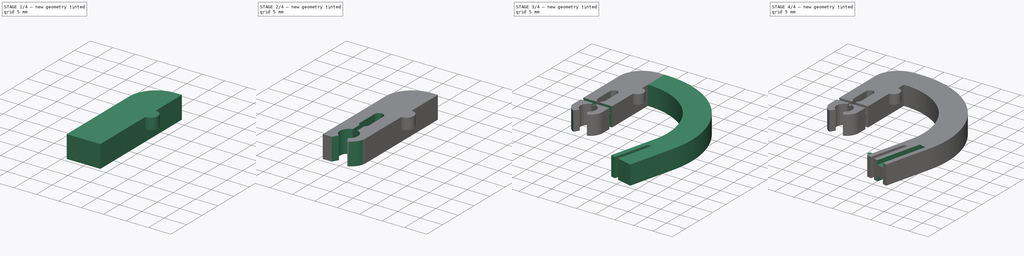
[diagram: build sequence overview — one tinted view per stage of 4, left to right]
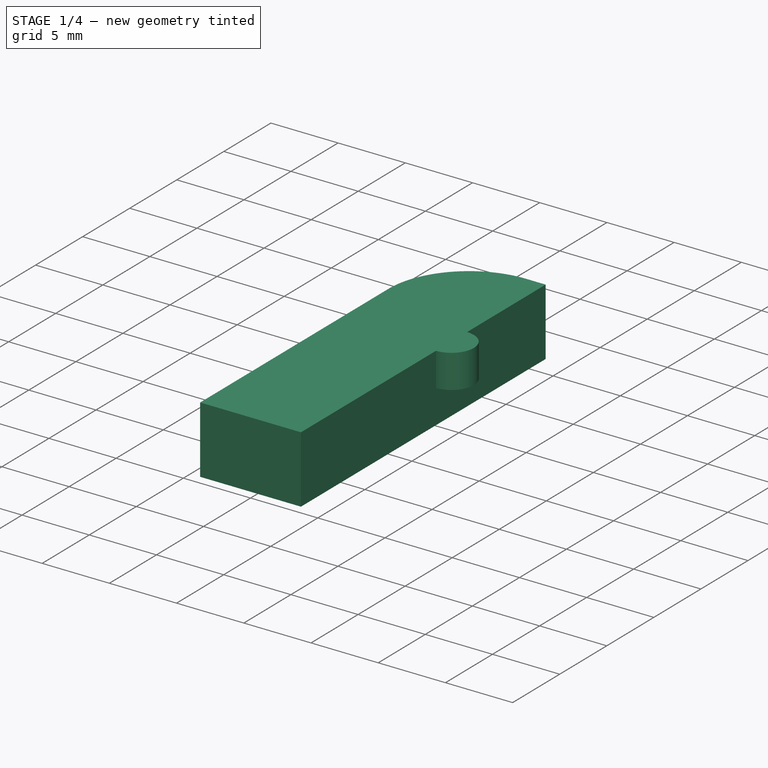
[diagram: stage 1 of 4 — iso view after this stage's code; geometry added in this stage tinted green]
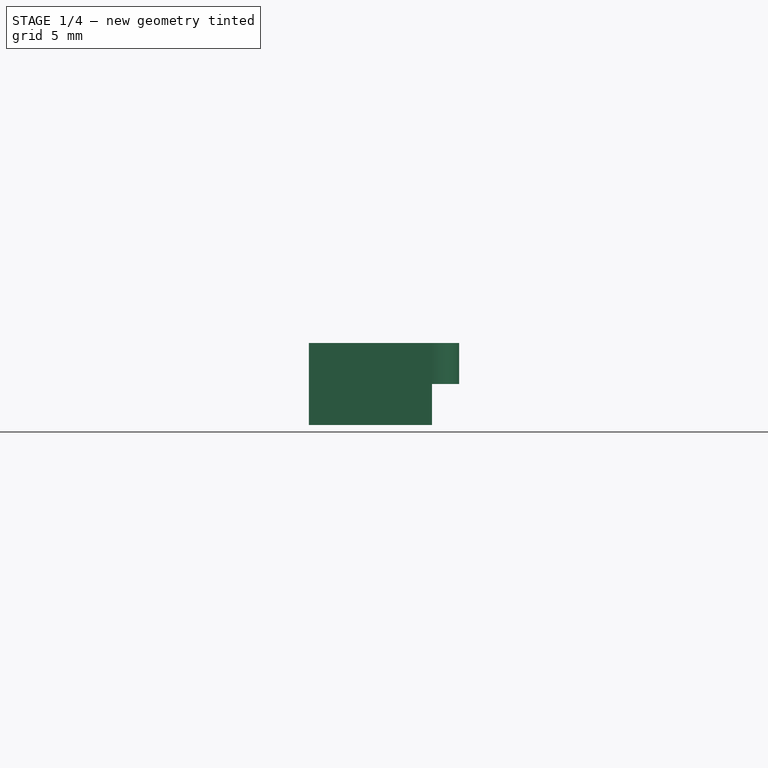
[diagram: stage 1 of 4 — front view after this stage's code; geometry added in this stage tinted green]
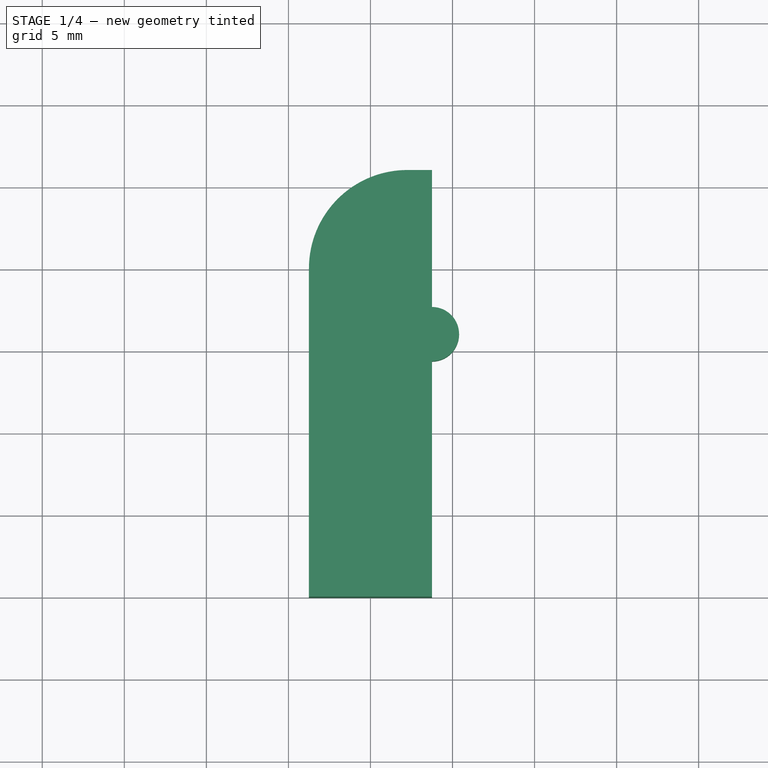
[diagram: stage 1 of 4 — top view after this stage's code; geometry added in this stage tinted green]
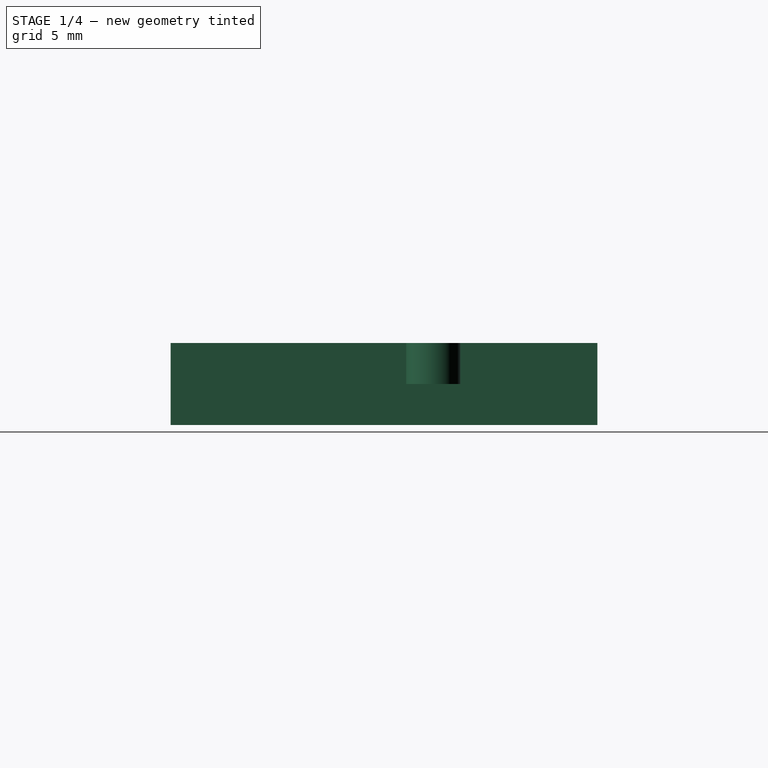
[diagram: stage 1 of 4 — right view after this stage's code; geometry added in this stage tinted green]
FCSTD DOCUMENT  (FreeCAD 0.21R33771 (Git))
Label: Bügel
License: All rights reserved
LicenseURL: http://en.wikipedia.org/wiki/All_rights_reserved
objects: Sketcher::SketchObject×10, PartDesign::Pocket×6, PartDesign::Pad×4, PartDesign::Mirrored×2, Image::ImagePlane×1, PartDesign::Fillet×1, PartDesign::Body×1
note: 35 computed .brp shape members not serialized (recipe doc carries the construction recipe); baked Part::Feature solids carry a one-line shape summary decoded from their .brp

FEATURE [Image::ImagePlane] _0241005112909  label="20241005112909"
  Placement = pos=(-12.9647,-49.7911,0) rot=(0,0,-1;0.122173rad)
  XSize = 210.342
  YSize = 297.307
FEATURE [Sketcher::SketchObject] Sketch003
  FullyConstrained = true
  MapMode = 5
  Support = -> [XY_Plane]
  sketch-geometry (4):
    g0: LineSegment StartX=-3.75 StartY=0 StartZ=0 EndX=3.75 EndY=0 EndZ=0
    g1: LineSegment StartX=3.75 StartY=0 StartZ=0 EndX=3.75 EndY=26 EndZ=0
    g2: LineSegment StartX=3.75 StartY=26 StartZ=0 EndX=-3.75 EndY=26 EndZ=0
    g3: LineSegment StartX=-3.75 StartY=26 StartZ=0 EndX=-3.75 EndY=0 EndZ=0
  constraints (11):
    c: Coincident(g0,g1)
    c: Coincident(g1,g2)
    c: Coincident(g2,g3)
    c: Coincident(g3,g0)
    c: Horizontal(g0)
    c: Horizontal(g2)
    c: Vertical(g1)
    c: Vertical(g3)
    c: DistanceX(g2,g2) = 7.5
    c: DistanceY(g3,g3) = 26
    c: Symmetric(g0,g0,g-1)
FEATURE [PartDesign::Pad] Pad
  Direction = (0,0,1)
  Length = 5
  Length2 = 10
  Midplane = true
  Profile = -> Sketch003
  ReferenceAxis = -> Sketch003 [N_Axis]
  Type = 0
FEATURE [Sketcher::SketchObject] Sketch004
  ExternalGeometry = -> [Pad]
  FullyConstrained = true
  MapMode = 5
  Support = -> [XY_Plane]
  sketch-geometry (1):
    g0: Circle CenterX=3.75 CenterY=16 CenterZ=0 NormalX=0 NormalY=0 NormalZ=1 AngleXU=0 Radius=1.65
  constraints (3):
    c: PointOnObject(g0,g-3)
    c: Diameter(g0) = 3.3
    c: DistanceY(g0,g-3) = 10
FEATURE [PartDesign::Pad] Pad001
  BaseFeature = -> Pad
  Direction = (0,0,1)
  Length = 2.5
  Length2 = 10
  Profile = -> Sketch004
  ReferenceAxis = -> Sketch004 [N_Axis]
  Type = 0
FEATURE [PartDesign::Fillet] Fillet
  Base = -> Pad001 [Edge5]
  BaseFeature = -> Pad001
  Radius = 6
  SupportTransform = false
  UseAllEdges = false
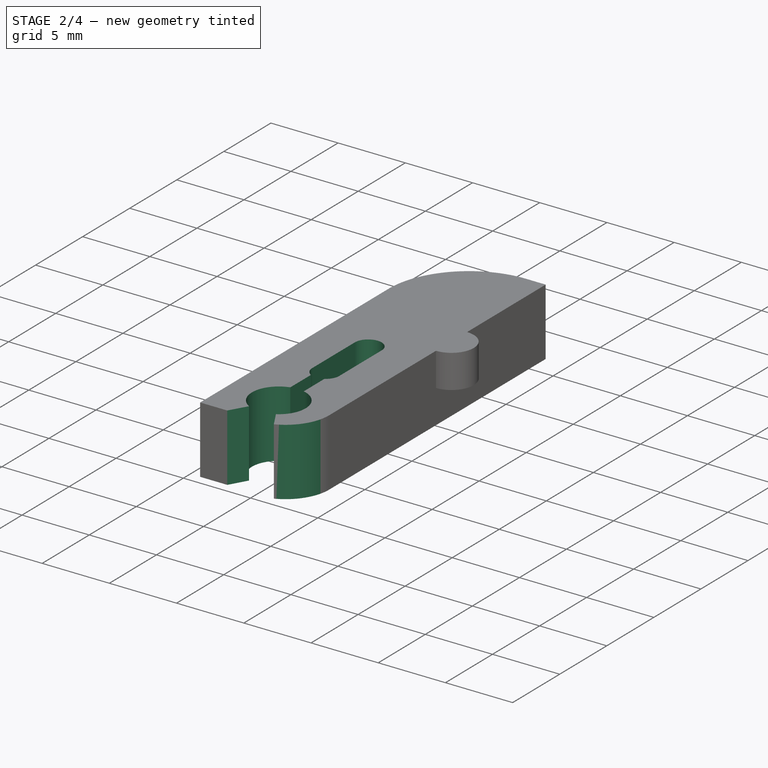
[diagram: stage 2 of 4 — iso view after this stage's code; geometry added in this stage tinted green]
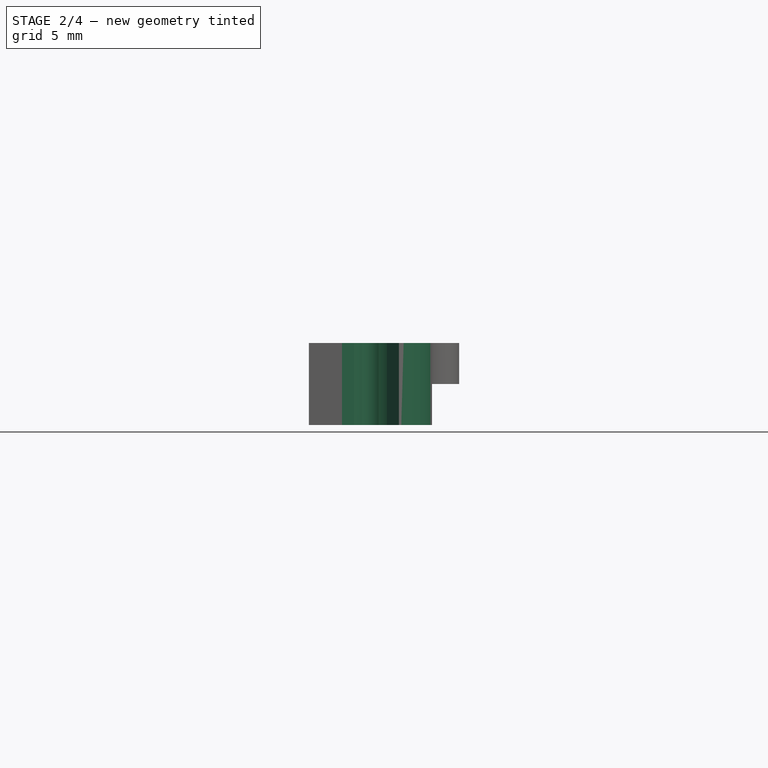
[diagram: stage 2 of 4 — front view after this stage's code; geometry added in this stage tinted green]
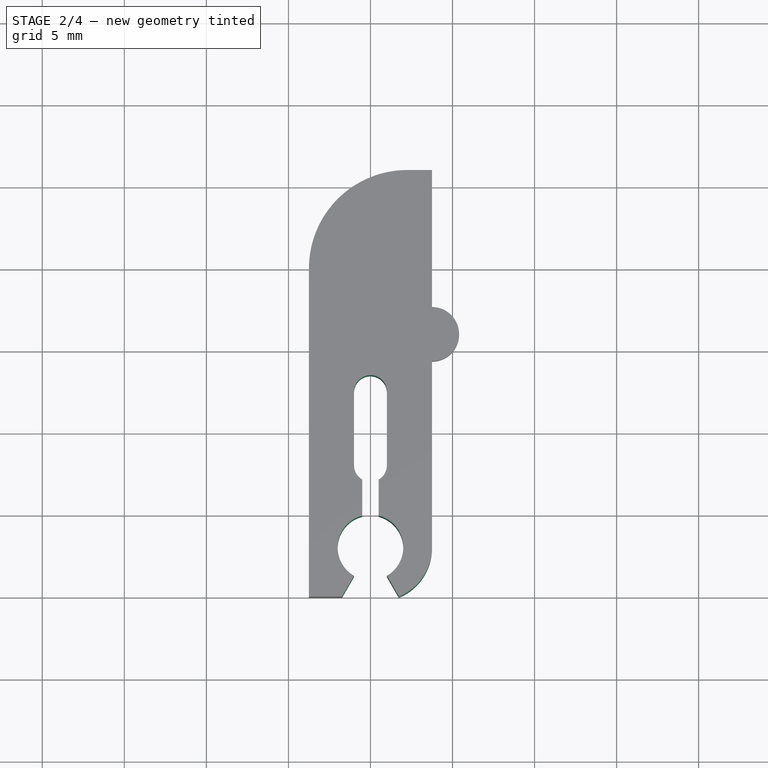
[diagram: stage 2 of 4 — top view after this stage's code; geometry added in this stage tinted green]
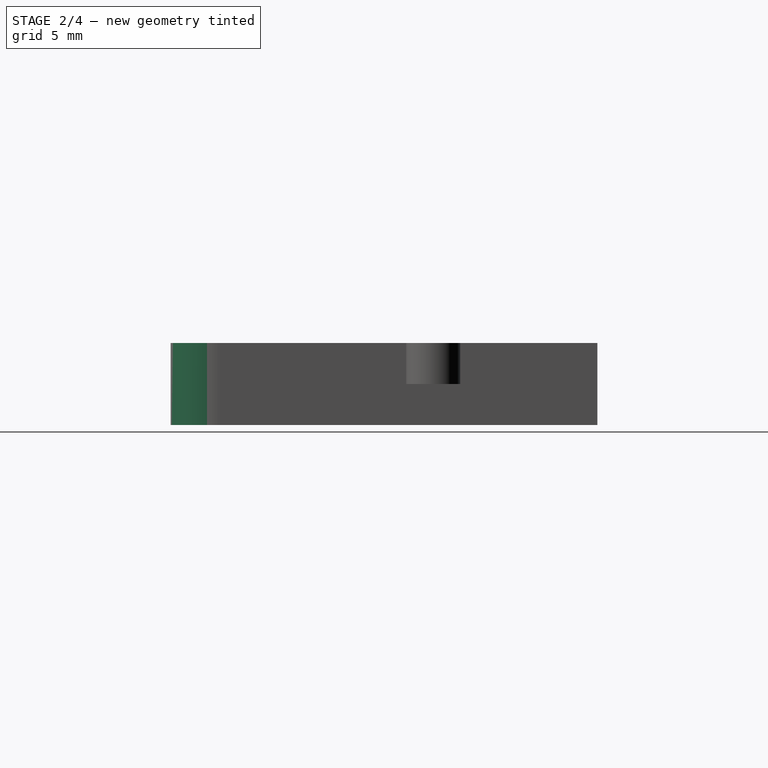
[diagram: stage 2 of 4 — right view after this stage's code; geometry added in this stage tinted green]
FEATURE [Sketcher::SketchObject] Sketch005
  ExternalGeometry = -> [Fillet]
  FullyConstrained = true
  MapMode = 5
  Support = -> [XY_Plane]
  sketch-geometry (6):
    g0: Circle CenterX=0 CenterY=3 CenterZ=0 NormalX=0 NormalY=0 NormalZ=1 AngleXU=0 Radius=2
    g1: ArcOfCircle CenterX=0 CenterY=12.5 CenterZ=0 NormalX=0 NormalY=0 NormalZ=1 AngleXU=0 Radius=1 StartAngle=0 EndAngle=3.14159
    g2: ArcOfCircle CenterX=0 CenterY=8 CenterZ=0 NormalX=0 NormalY=0 NormalZ=1 AngleXU=0 Radius=1 StartAngle=3.14159 EndAngle=6.28319
    g3: LineSegment StartX=-1 StartY=12.5 StartZ=0 EndX=-1 EndY=8 EndZ=0
    g4: LineSegment StartX=1 StartY=8 StartZ=0 EndX=1 EndY=12.5 EndZ=0
    g5: LineSegment StartX=0 StartY=8 StartZ=0 EndX=0 EndY=3 EndZ=0
  constraints (15):
    c: Tangent(g1,g3) = -1.5708
    c: Tangent(g3,g2) = -1.5708
    c: Tangent(g2,g4) = -1.5708
    c: Tangent(g4,g1) = -1.5708
    c: Equal(g1,g2)
    c: Vertical(g3)
    c: Diameter(g0) = 4
    c: Diameter(g2) = 2
    c: Coincident(g5,g2)
    c: Coincident(g5,g0)
    c: Vertical(g5)
    c: DistanceY(g5,g5) = 5
    c: DistanceY(g3,g3) = 4.5
    c: PointOnObject(g0,g-2)
    c: DistanceY(g-1,g0) = 3
FEATURE [PartDesign::Pocket] Pocket
  BaseFeature = -> Fillet
  Direction = (0,0,-1)
  Length = 5
  Length2 = 5
  Midplane = true
  Profile = -> Sketch005
  ReferenceAxis = -> Sketch005 [N_Axis]
  Type = 1
FEATURE [Sketcher::SketchObject] Sketch006
  ExternalGeometry = -> [Pocket]
  FullyConstrained = true
  MapMode = 5
  Support = -> [XY_Plane]
  sketch-geometry (7):
    g0: LineSegment StartX=-1.73205 StartY=0 StartZ=0 EndX=0 EndY=3 EndZ=0
    g1: LineSegment StartX=0 StartY=3 StartZ=0 EndX=1.73205 EndY=0 EndZ=0
    g2: LineSegment StartX=1.73205 StartY=0 StartZ=0 EndX=-1.73205 EndY=0 EndZ=0
    g3: LineSegment StartX=-0.5 StartY=8 StartZ=0 EndX=0.5 EndY=8 EndZ=0
    g4: LineSegment StartX=0.5 StartY=8 StartZ=0 EndX=0.5 EndY=3 EndZ=0
    g5: LineSegment StartX=0.5 StartY=3 StartZ=0 EndX=-0.5 EndY=3 EndZ=0
    g6: LineSegment StartX=-0.5 StartY=3 StartZ=0 EndX=-0.5 EndY=8 EndZ=0
  constraints (19):
    c: Coincident(g0,g1)
    c: Coincident(g1,g2)
    c: Coincident(g2,g0)
    c: Coincident(g3,g4)
    c: Coincident(g4,g5)
    c: Coincident(g5,g6)
    c: Coincident(g6,g3)
    c: Horizontal(g3)
    c: Horizontal(g5)
    c: Vertical(g4)
    c: Vertical(g6)
    c: Horizontal(g2)
    c: Symmetric(g5,g5,g0)
    c: Equal(g0,g1)
    c: Angle(g0,g1) = 1.0472
    c: PointOnObject(g0,g-1)
    c: DistanceX(g3,g3) = 1
    c: Coincident(g0,g-3)
    c: PointOnObject(g-4,g3)
FEATURE [PartDesign::Pocket] Pocket001
  BaseFeature = -> Pocket
  Direction = (0,0,-1)
  Length = 5
  Length2 = 5
  Midplane = true
  Profile = -> Sketch006
  ReferenceAxis = -> Sketch006 [N_Axis]
  Type = 1
FEATURE [Sketcher::SketchObject] Sketch007
  ExternalGeometry = -> [Pocket001]
  FullyConstrained = true
  MapMode = 5
  Support = -> [XY_Plane]
  sketch-geometry (3):
    g0: ArcOfCircle CenterX=0.5 CenterY=3.00742 CenterZ=0 NormalX=0 NormalY=0 NormalZ=1 AngleXU=0 Radius=3.25 StartAngle=5.1012 EndAngle=6.28319
    g1: LineSegment StartX=1.73205 StartY=-4e-16 StartZ=0 EndX=3.75 EndY=0 EndZ=0
    g2: LineSegment StartX=3.75 StartY=0 StartZ=0 EndX=3.75 EndY=3.00742 EndZ=0
  constraints (7):
    c: Coincident(g0,g-3)
    c: Coincident(g0,g1)
    c: Coincident(g1,g2)
    c: Coincident(g1,g-4)
    c: Vertical(g2)
    c: Perpendicular(g0,g-6)
    c: Tangent(g2,g0) = -1.5708
FEATURE [PartDesign::Pocket] Pocket002
  BaseFeature = -> Pocket001
  Direction = (0,0,-1)
  Length = 5
  Length2 = 5
  Midplane = true
  Profile = -> Sketch007
  ReferenceAxis = -> Sketch007 [N_Axis]
  Type = 1
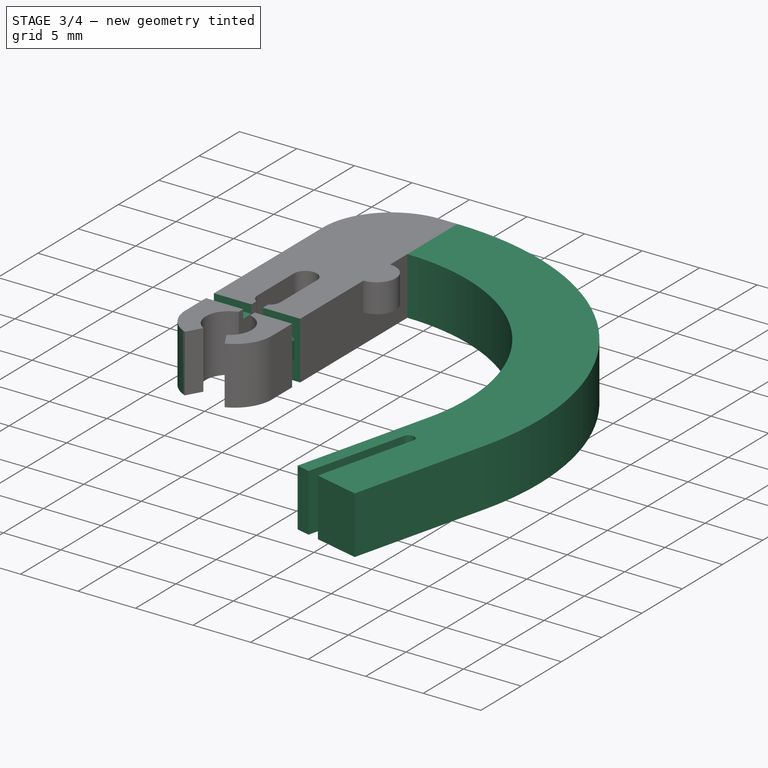
[diagram: stage 3 of 4 — iso view after this stage's code; geometry added in this stage tinted green]
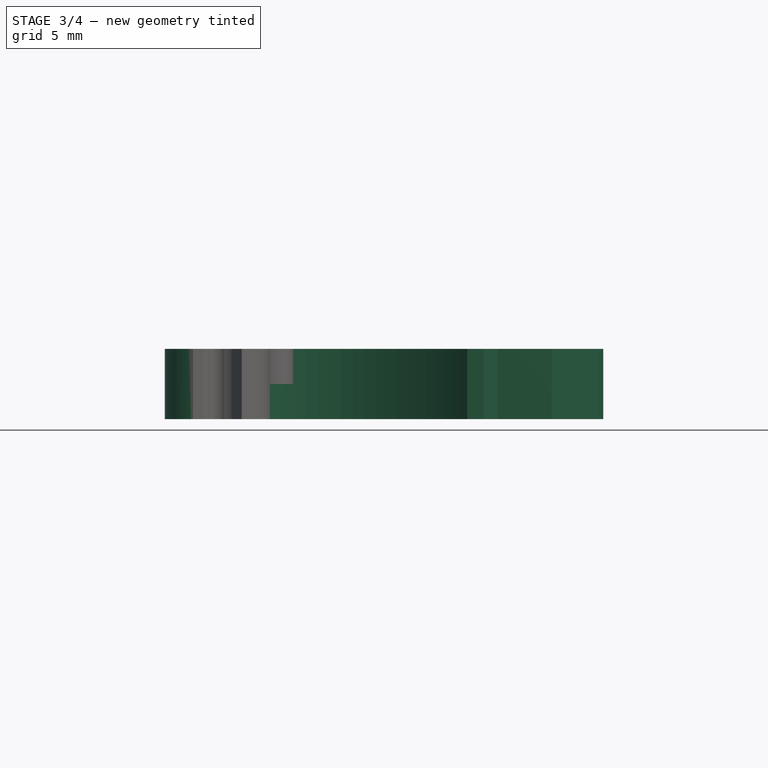
[diagram: stage 3 of 4 — front view after this stage's code; geometry added in this stage tinted green]
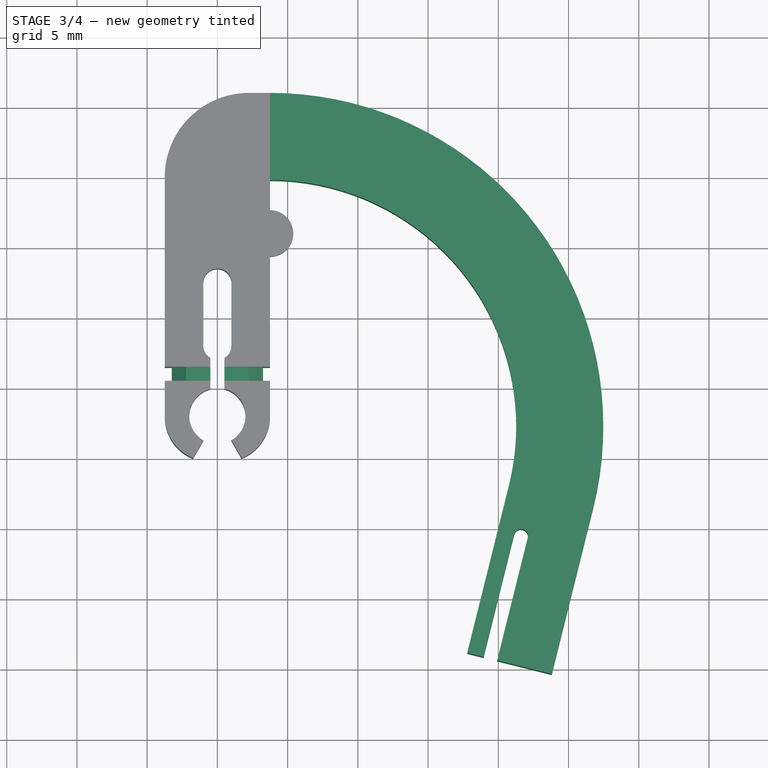
[diagram: stage 3 of 4 — top view after this stage's code; geometry added in this stage tinted green]
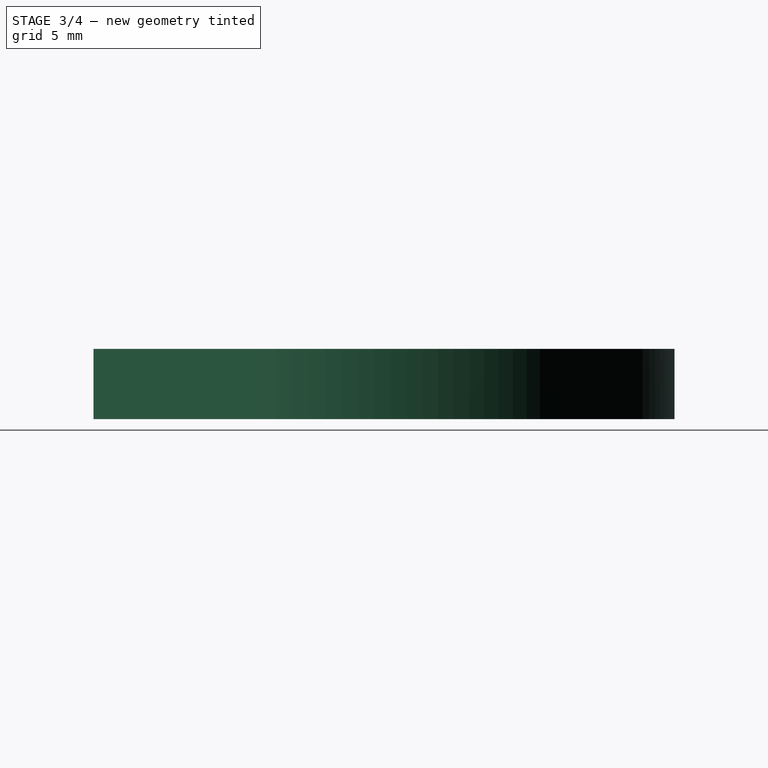
[diagram: stage 3 of 4 — right view after this stage's code; geometry added in this stage tinted green]
FEATURE [PartDesign::Mirrored] Mirrored
  BaseFeature = -> Pocket002
  MirrorPlane = -> YZ_Plane
  Originals = -> [Pocket002]
FEATURE [Sketcher::SketchObject] Sketch009
  AttachmentOffset = pos=(0,0,-6) rot=(0,0,1;0rad)
  ExternalGeometry = -> [Mirrored]
  FullyConstrained = true
  MapMode = 5
  Placement = pos=(0,6,1.3e-15) rot=(1,0,0;1.5708rad)
  Support = -> [XZ_Plane]
  sketch-geometry (24):
    g0: LineSegment StartX=-3.75 StartY=2.5 StartZ=0 EndX=-3.75 EndY=-2.5 EndZ=0
    g1: LineSegment StartX=-3.75 StartY=-2.5 StartZ=0 EndX=3.75 EndY=-2.5 EndZ=0
    g2: LineSegment StartX=3.75 StartY=-2.5 StartZ=0 EndX=3.75 EndY=2.5 EndZ=0
    g3: LineSegment StartX=3.75 StartY=2.5 StartZ=0 EndX=-3.75 EndY=2.5 EndZ=0
    g4: LineSegment StartX=-0.775126 StartY=-1.75 StartZ=0 EndX=0.25 EndY=-0.724874 EndZ=0
    g5: LineSegment StartX=0.25 StartY=-0.724874 StartZ=0 EndX=0.25 EndY=0.724874 EndZ=0
    g6: LineSegment StartX=0.25 StartY=0.724874 StartZ=0 EndX=-0.775126 EndY=1.75 EndZ=0
    g7: LineSegment StartX=-0.775126 StartY=1.75 StartZ=0 EndX=-2.22487 EndY=1.75 EndZ=0
    g8: LineSegment StartX=-2.22487 StartY=1.75 StartZ=0 EndX=-3.25 EndY=0.724874 EndZ=0
    g9: LineSegment StartX=-3.25 StartY=0.724874 StartZ=0 EndX=-3.25 EndY=-0.724874 EndZ=0
    g10: LineSegment StartX=-3.25 StartY=-0.724874 StartZ=0 EndX=-2.22487 EndY=-1.75 EndZ=0
    g11: LineSegment StartX=-2.22487 StartY=-1.75 StartZ=0 EndX=-0.775126 EndY=-1.75 EndZ=0
    g12: Circle CenterX=-1.5 CenterY=0 CenterZ=0 NormalX=0 NormalY=0 NormalZ=1 AngleXU=0 Radius=1.89419
    g13: LineSegment StartX=0.775126 StartY=-1.75 StartZ=0 EndX=2.22487 EndY=-1.75 EndZ=0
    g14: LineSegment StartX=2.22487 StartY=-1.75 StartZ=0 EndX=3.25 EndY=-0.724874 EndZ=0
    g15: LineSegment StartX=3.25 StartY=-0.724874 StartZ=0 EndX=3.25 EndY=0.724874 EndZ=0
    g16: LineSegment StartX=3.25 StartY=0.724874 StartZ=0 EndX=2.22487 EndY=1.75 EndZ=0
    g17: LineSegment StartX=2.22487 StartY=1.75 StartZ=0 EndX=0.775126 EndY=1.75 EndZ=0
    g18: LineSegment StartX=0.775126 StartY=1.75 StartZ=0 EndX=-0.25 EndY=0.724874 EndZ=0
    g19: LineSegment StartX=-0.25 StartY=0.724874 StartZ=0 EndX=-0.25 EndY=-0.724874 EndZ=0
    g20: LineSegment StartX=-0.25 StartY=-0.724874 StartZ=0 EndX=0.775126 EndY=-1.75 EndZ=0
    g21: Circle CenterX=1.5 CenterY=0 CenterZ=0 NormalX=0 NormalY=0 NormalZ=1 AngleXU=0 Radius=1.89419
    g22: LineSegment StartX=-2.22487 StartY=1.75 StartZ=0 EndX=2.22487 EndY=1.75 EndZ=0
    g23: LineSegment StartX=-2.22487 StartY=-1.75 StartZ=0 EndX=2.22487 EndY=-1.75 EndZ=0
  constraints (55):
    c: Coincident(g0,g1)
    c: Coincident(g1,g2)
    c: Coincident(g2,g3)
    c: Coincident(g3,g0)
    c: Horizontal(g1)
    c: Horizontal(g3)
    c: Vertical(g0)
    c: Vertical(g2)
    c: Coincident(g4,g5)
    c: Coincident(g5,g6)
    c: Coincident(g6,g7)
    c: Coincident(g7,g8)
    c: Coincident(g8,g9)
    c: Coincident(g9,g10)
    c: Coincident(g10,g11)
    c: Coincident(g11,g4)
    c: Equal(g4, g5-g11) x7
    c: PointOnObject(g4,g12)
    c: PointOnObject(g5,g12)
    c: PointOnObject(g6,g12)
    c: PointOnObject(g7,g12)
    c: PointOnObject(g8,g12)
    c: PointOnObject(g9,g12)
    c: PointOnObject(g10,g12)
    c: PointOnObject(g11,g12)
    c: PointOnObject(g12,g-1)
    c: Coincident(g13,g14)
    c: Coincident(g14,g15)
    c: Coincident(g15,g16)
    c: Coincident(g16,g17)
    c: Coincident(g17,g18)
    c: Coincident(g18,g19)
    c: Coincident(g19,g20)
    c: Coincident(g20,g13)
    c: Equal(g13, g14-g20) x7
    c: PointOnObject(g13,g21)
    c: PointOnObject(g14,g21)
    c: PointOnObject(g15,g21)
    c: PointOnObject(g16,g21)
    c: PointOnObject(g17,g21)
    c: PointOnObject(g18,g21)
    c: PointOnObject(g19,g21)
    c: PointOnObject(g20,g21)
    c: PointOnObject(g21,g-1)
    c: Horizontal(g7)
    c: Horizontal(g17)
    c: Coincident(g22,g8)
    c: Coincident(g22,g16)
    c: Coincident(g23,g10)
    c: Coincident(g23,g14)
    c: DistanceY(g14,g16) = 3.5
    c: Symmetric(g10,g14,g-2)
    c: DistanceX(g9,g14) = 6.5
    c: Coincident(g2,g-3)
    c: Coincident(g0,g-4)
FEATURE [PartDesign::Pocket] Pocket003
  BaseFeature = -> Mirrored
  Direction = (0,1,2e-16)
  Length = 1
  Length2 = 5
  Midplane = true
  Profile = -> Sketch009
  ReferenceAxis = -> Sketch009 [N_Axis]
  Type = 0
FEATURE [Sketcher::SketchObject] Sketch010
  ExternalGeometry = -> [Pocket003]
  FullyConstrained = true
  MapMode = 5
  Support = -> [XY_Plane]
  sketch-geometry (6):
    g0: ArcOfCircle CenterX=3.75 CenterY=2.27642 CenterZ=0 NormalX=0 NormalY=0 NormalZ=1 AngleXU=0 Radius=23.7236 StartAngle=6.03884 EndAngle=7.85398
    g1: ArcOfCircle CenterX=3.75 CenterY=2.27642 CenterZ=0 NormalX=0 NormalY=0 NormalZ=1 AngleXU=0 Radius=17.5236 StartAngle=6.03884 EndAngle=7.85398
    g2: LineSegment StartX=20.7531 StartY=-1.96292 StartZ=0 EndX=17.7842 EndY=-13.8705 EndZ=0
    g3: LineSegment StartX=17.7842 StartY=-13.8705 StartZ=0 EndX=23.8 EndY=-15.3704 EndZ=0
    g4: LineSegment StartX=23.8 StartY=-15.3704 StartZ=0 EndX=26.7689 EndY=-3.46284 EndZ=0
    g5: LineSegment StartX=3.75 StartY=19.8 StartZ=0 EndX=3.75 EndY=26 EndZ=0
  constraints (16):
    c: Coincident(g1,g0)
    c: Tangent(g1,g2) = 1.5708
    c: Coincident(g2,g3)
    c: Coincident(g3,g4)
    c: Tangent(g4,g0) = -1.5708
    c: Perpendicular(g2,g3)
    c: Perpendicular(g4,g3)
    c: Distance(g3) = 6.2
    c: Angle(g4,g-2) = 0.244346
    c: DistanceX(g3) = 23.8
    c: DistanceY(g3) = -15.3704
    c: Tangent(g0,g-3) = -1.5708
    c: Coincident(g0,g-3)
    c: Coincident(g5,g1)
    c: Coincident(g5,g0)
    c: Vertical(g5)
FEATURE [PartDesign::Pad] Pad002
  BaseFeature = -> Pocket003
  Direction = (0,0,1)
  Length = 5
  Length2 = 10
  Midplane = true
  Profile = -> Sketch010
  ReferenceAxis = -> Sketch010 [N_Axis]
  Type = 0
FEATURE [Sketcher::SketchObject] Sketch011
  ExternalGeometry = -> [Pad002]
  FullyConstrained = true
  MapMode = 5
  Support = -> [XY_Plane]
  sketch-geometry (4):
    g0: ArcOfCircle CenterX=19.4337 CenterY=-14.2818 CenterZ=0 NormalX=0 NormalY=0 NormalZ=1 AngleXU=0 Radius=0.5 StartAngle=2.89725 EndAngle=6.03884
    g1: ArcOfCircle CenterX=21.611 CenterY=-5.54911 CenterZ=0 NormalX=0 NormalY=0 NormalZ=1 AngleXU=0 Radius=0.5 StartAngle=6.03884 EndAngle=9.18043
    g2: LineSegment StartX=19.9188 StartY=-14.4027 StartZ=0 EndX=22.0961 EndY=-5.67007 EndZ=0
    g3: LineSegment StartX=21.1258 StartY=-5.42814 StartZ=0 EndX=18.9485 EndY=-14.1608 EndZ=0
  constraints (10):
    c: Tangent(g0,g2) = -1.5708
    c: Tangent(g2,g1) = -1.5708
    c: Tangent(g1,g3) = -1.5708
    c: Tangent(g3,g0) = -1.5708
    c: Equal(g0,g1)
    c: Parallel(g3,g-3)
    c: PointOnObject(g0,g-4)
    c: Diameter(g1) = 1
    c: Distance(g3) = 9
    c: Distance(g0,g-4) = 4.5
FEATURE [PartDesign::Pocket] Pocket004
  BaseFeature = -> Pad002
  Direction = (0,0,-1)
  Length = 5
  Length2 = 5
  Midplane = true
  Profile = -> Sketch011
  ReferenceAxis = -> Sketch011 [N_Axis]
  Type = 1
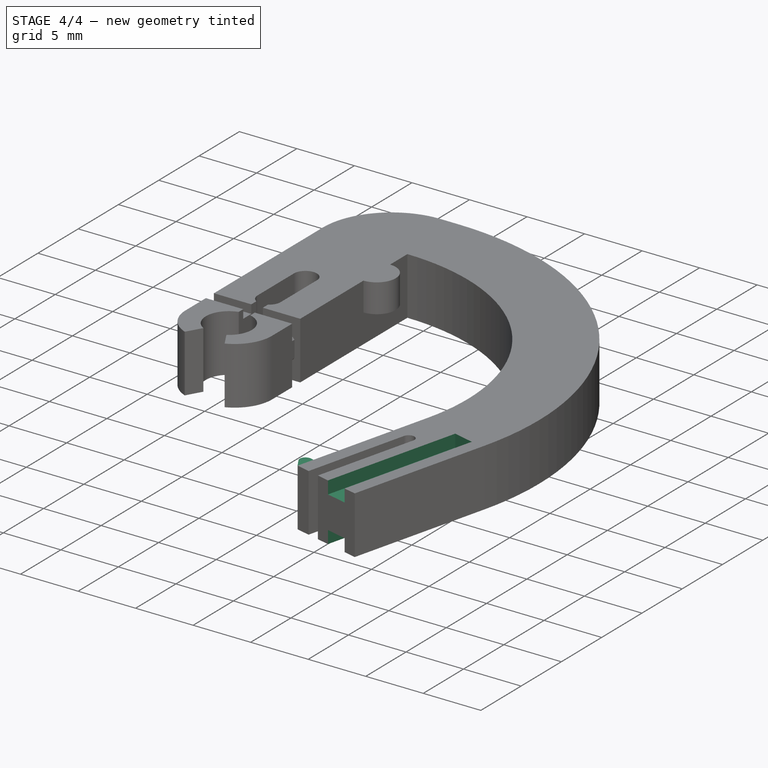
[diagram: stage 4 of 4 — iso view after this stage's code; geometry added in this stage tinted green]
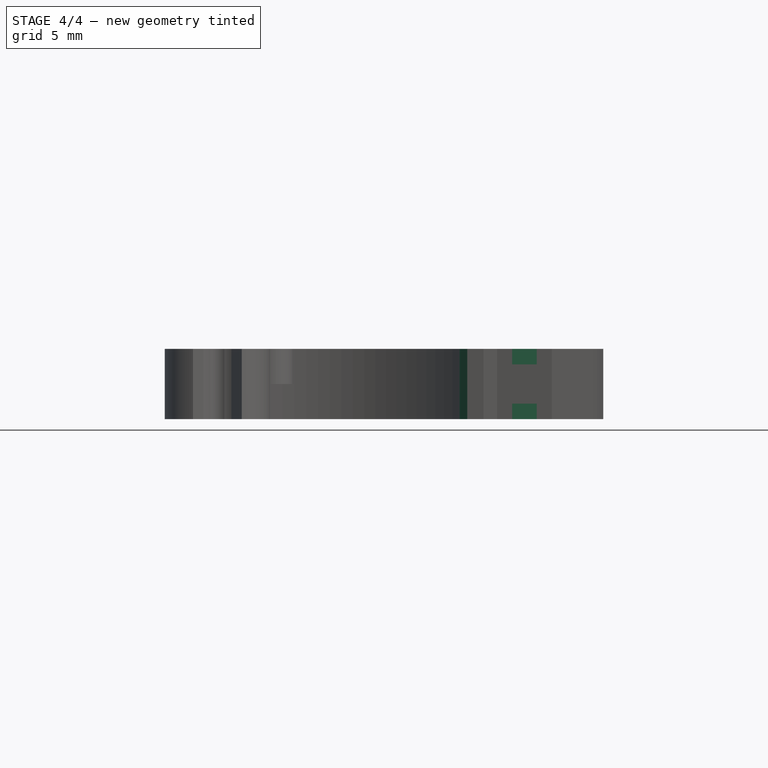
[diagram: stage 4 of 4 — front view after this stage's code; geometry added in this stage tinted green]
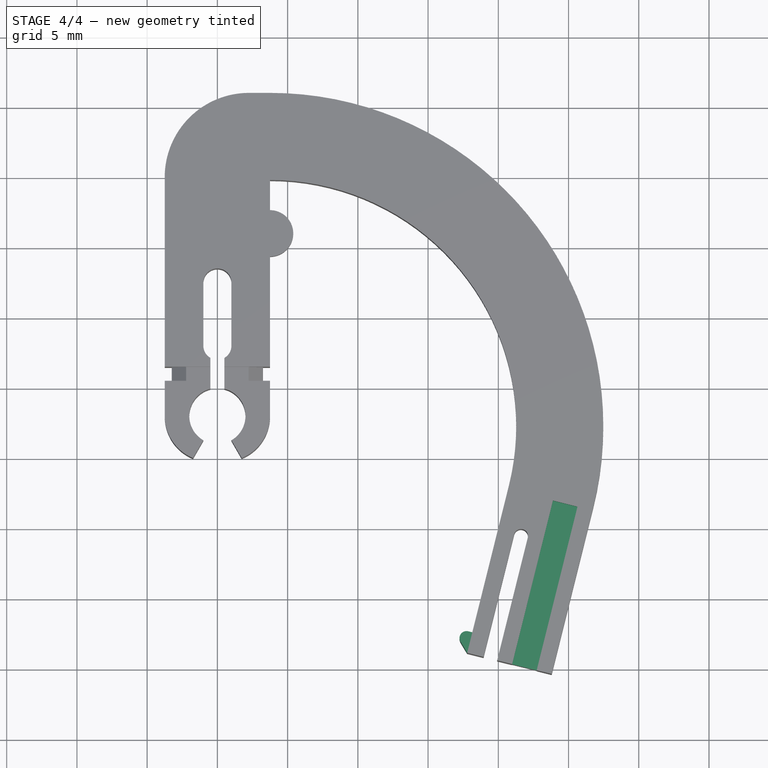
[diagram: stage 4 of 4 — top view after this stage's code; geometry added in this stage tinted green]
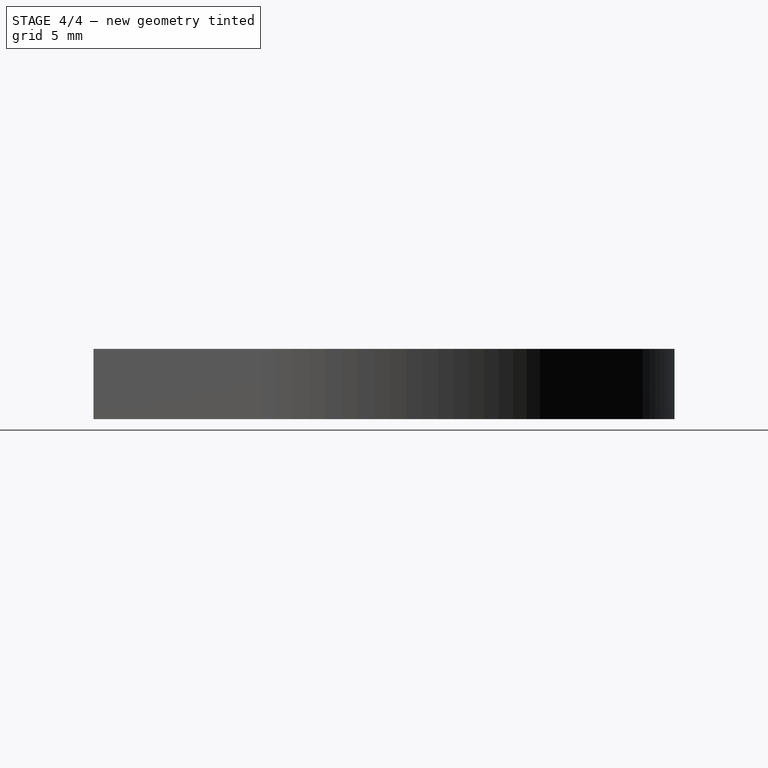
[diagram: stage 4 of 4 — right view after this stage's code; geometry added in this stage tinted green]
FEATURE [Sketcher::SketchObject] Sketch012
  ExternalGeometry = -> [Pocket004]
  FullyConstrained = true
  MapMode = 5
  Support = -> [XY_Plane]
  sketch-geometry (5):
    g0: LineSegment StartX=17.7842 StartY=-13.8705 StartZ=0 EndX=18.1488 EndY=-12.4082 EndZ=0
    g1: LineSegment StartX=18.1488 StartY=-12.4082 StartZ=0 EndX=17.8577 EndY=-12.3356 EndZ=0
    g2: LineSegment StartX=17.3081 StartY=-13.0783 StartZ=0 EndX=17.7842 EndY=-13.8705 EndZ=0
    g3: ArcOfCircle CenterX=17.7367 CenterY=-12.8207 CenterZ=0 NormalX=0 NormalY=0 NormalZ=1 AngleXU=0 Radius=0.5 StartAngle=1.32645 EndAngle=3.68264
    g4: LineSegment StartX=17.3725 StartY=-12.2146 StartZ=0 EndX=17.0079 EndY=-13.677 EndZ=0
  constraints (13):
    c: Coincident(g0,g1)
    c: Perpendicular(g1,g0)
    c: Tangent(g1,g3) = -1.5708
    c: Tangent(g2,g3) = -1.5708
    c: Radius(g3) = 0.5
    c: Angle(g0,g2) = 0.785398
    c: Equal(g0,g4)
    c: PointOnObject(g4,g1)
    c: Tangent(g4,g3)
    c: Parallel(g4,g0)
    c: Distance(g4,g0) = 0.8
    c: Tangent(g0,g-3) = 1.5708
    c: Coincident(g0,g2)
FEATURE [PartDesign::Pad] Pad003
  BaseFeature = -> Pocket004
  Direction = (0,0,1)
  Length = 5
  Length2 = 10
  Midplane = true
  Profile = -> Sketch012
  ReferenceAxis = -> Sketch012 [N_Axis]
  Type = 0
FEATURE [Sketcher::SketchObject] Sketch013
  AttachmentOffset = pos=(0,0,2.5) rot=(0,0,1;0rad)
  ExternalGeometry = -> [Pad003]
  FullyConstrained = true
  MapMode = 5
  Placement = pos=(0,0,2.5) rot=(0,0,1;0rad)
  Support = -> [XY_Plane]
  sketch-geometry (6):
    g0: LineSegment StartX=20.9861 StartY=-14.6688 StartZ=0 EndX=23.8892 EndY=-3.02529 EndZ=0
    g1: LineSegment StartX=23.8892 StartY=-3.02529 StartZ=0 EndX=25.6357 EndY=-3.46075 EndZ=0
    g2: LineSegment StartX=25.6357 StartY=-3.46075 StartZ=0 EndX=22.7327 EndY=-15.1043 EndZ=0
    g3: LineSegment StartX=22.7327 StartY=-15.1043 StartZ=0 EndX=20.9861 EndY=-14.6688 EndZ=0
    g4: LineSegment StartX=19.9188 StartY=-14.4027 StartZ=0 EndX=20.9861 EndY=-14.6688 EndZ=0
    g5: LineSegment StartX=22.7327 StartY=-15.1043 StartZ=0 EndX=23.8 EndY=-15.3704 EndZ=0
  constraints (15):
    c: Coincident(g0,g1)
    c: Coincident(g1,g2)
    c: Coincident(g2,g3)
    c: Coincident(g3,g0)
    c: Coincident(g4,g0)
    c: Coincident(g5,g2)
    c: Equal(g4,g5)
    c: Perpendicular(g0,g3)
    c: Perpendicular(g2,g3)
    c: Perpendicular(g2,g1)
    c: Distance(g3) = 1.8
    c: Distance(g2) = 12
    c: Coincident(g4,g-3)
    c: Coincident(g5,g-3)
    c: Tangent(g3,g-3)
FEATURE [PartDesign::Pocket] Pocket005
  BaseFeature = -> Pad003
  Direction = (0,0,-1)
  Length = 1.1
  Length2 = 5
  Profile = -> Sketch013
  ReferenceAxis = -> Sketch013 [N_Axis]
  Type = 0
FEATURE [PartDesign::Mirrored] Mirrored001
  BaseFeature = -> Pocket005
  MirrorPlane = -> XY_Plane
  Originals = -> [Pocket005]
  Refine = true
FEATURE [PartDesign::Body] Body  label="Körper"
  Group = -> [Sketch003,Pad,Sketch004,Pad001,Fillet,Sketch005,Pocket,Sketch006,Pocket001,Sketch007,Pocket002,Mirrored,Sketch009,Pocket003,Sketch010,Pad002,Sketch011,Pocket004,Sketch012,Pad003,Sketch013,Pocket005,Mirrored001]
  Origin = -> Origin
  Tip = -> Mirrored001
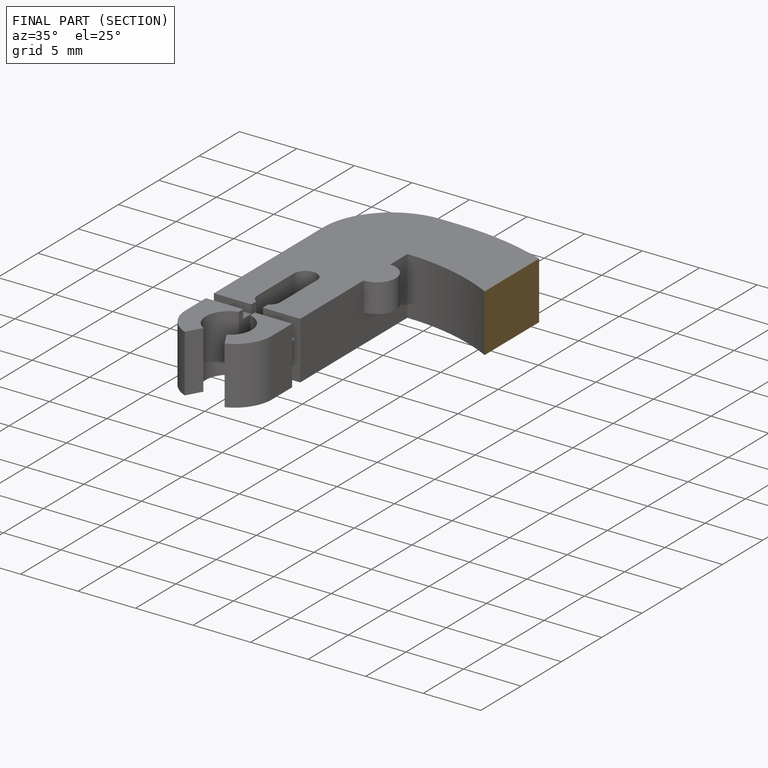
[diagram: finished part — half-section view (interior)]
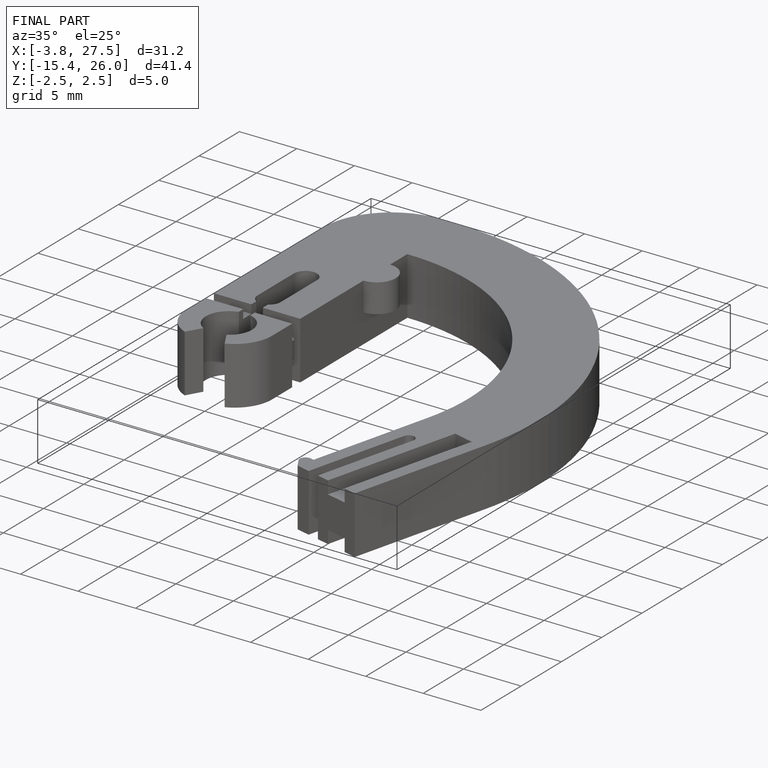
[diagram: finished part — iso view with bounding-box wireframe]
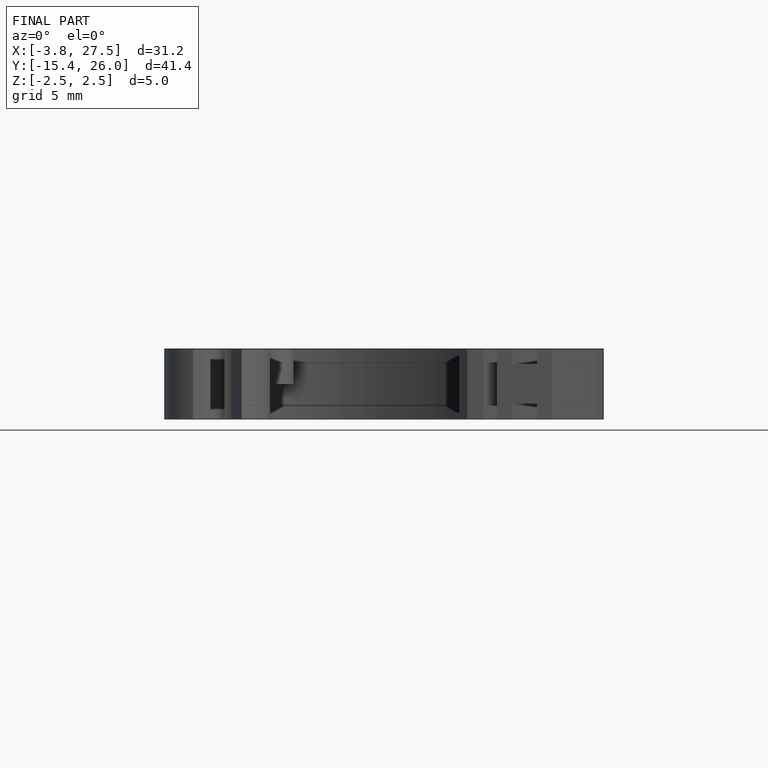
[diagram: finished part — front view with bounding-box wireframe]
